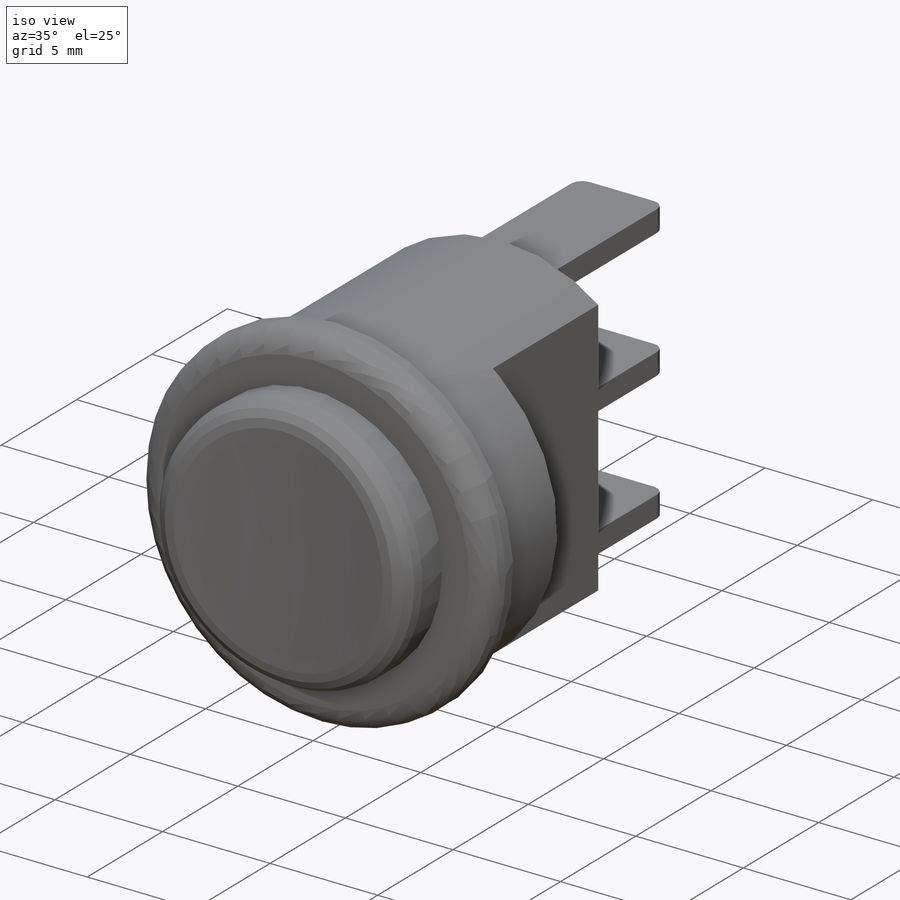
[diagram: iso view]
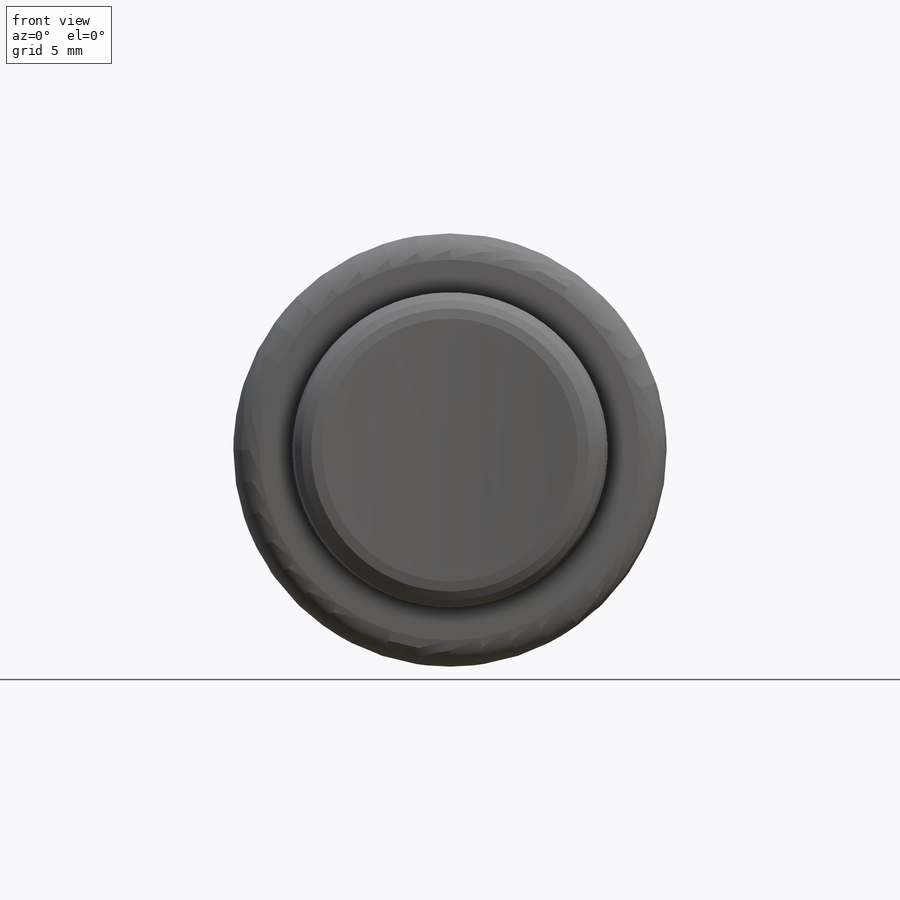
[diagram: front view]
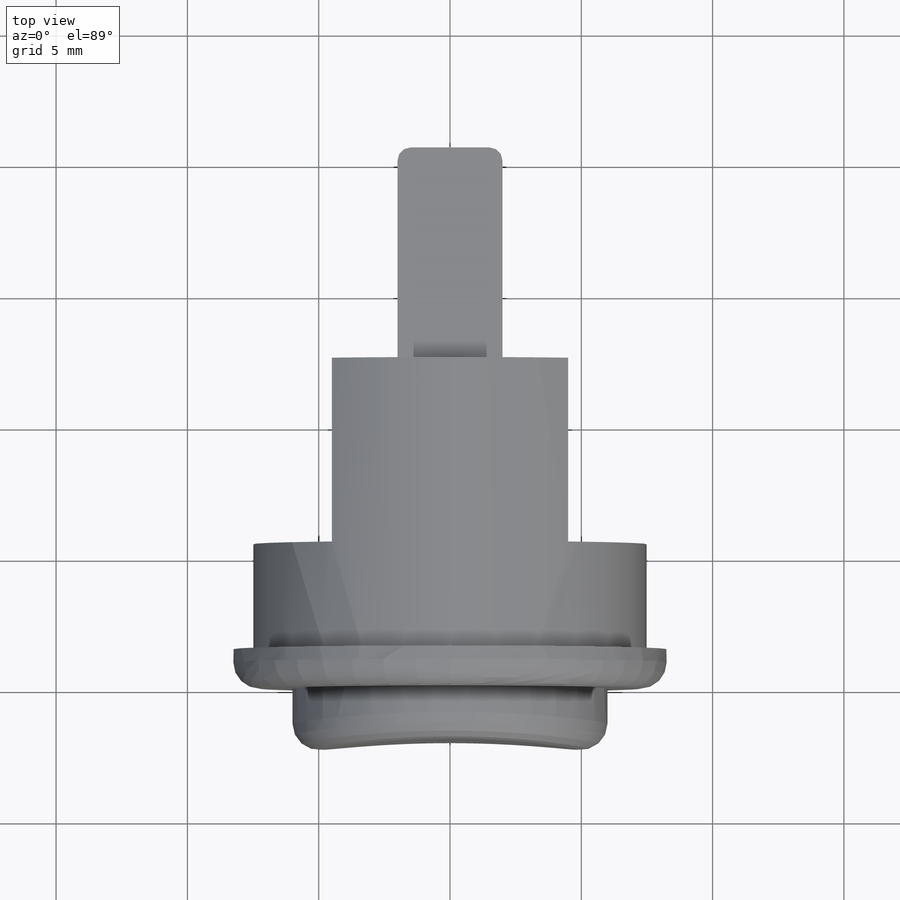
[diagram: top view]
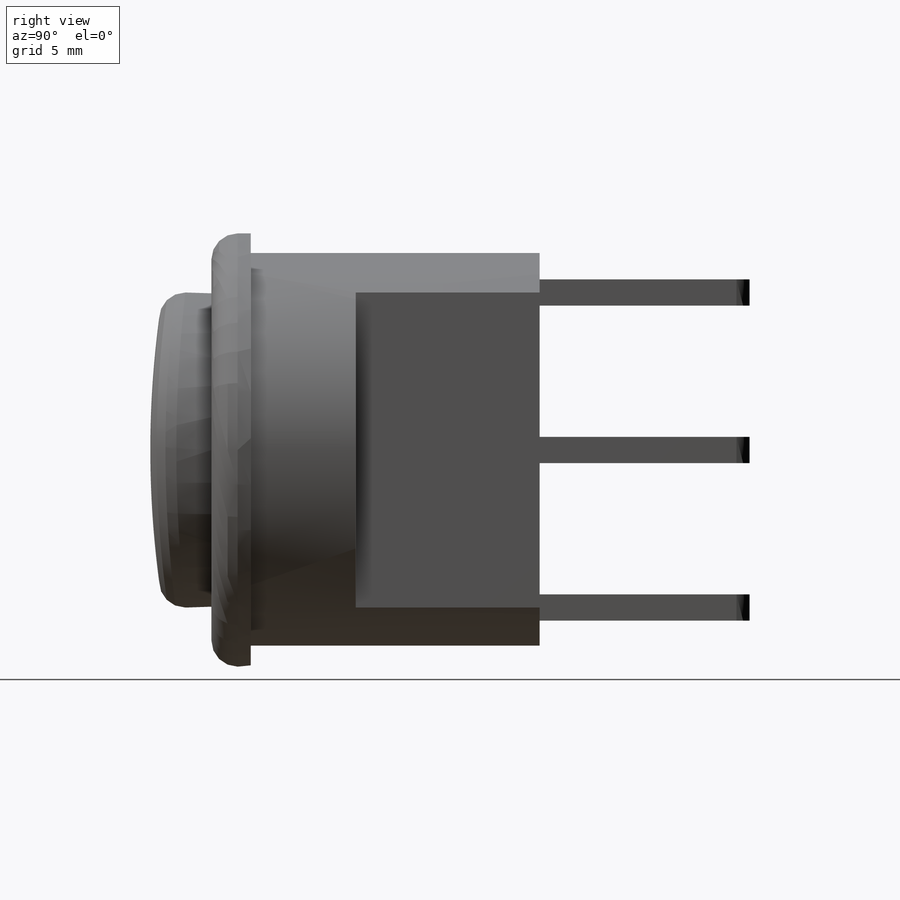
[diagram: right view]
SOLIDWORKS PART (.sldprt)
format: sldprt  version: not decoded by parser v0  size: 375,296 bytes
history: native  units: mm
features: sketch x5, fillet x5, plane x3, cut_extrude x2, extrude x2, material x1, revolve x1 (+8 scaffold rows collapsed)
feature tree (27):
  scaffold x8  (default folders/planes/origin — collapsed)
  material  "Материал <не указан>"
  plane  "Спереди"
  plane  "Сверху"
  plane  "Справа"
  sketch  "Эскиз1"  dims[D1=8.25mm D2=1.5mm D3=7.5mm D4=12.5mm]
  revolve  "Повернуть1"  Angle=360deg
  sketch  "Эскиз2"  dims[D1=9.0mm D2=0.0mm]
  cut_extrude  "Вырез-Вытянуть1"  Depth=7mm
  sketch  "Эскиз3"  dims[D1=12.0mm]
  extrude  "Бобышка-Вытянуть1"  Depth=2.5mm
  sketch  "Эскиз4"
  cut_extrude  "Вырез-Вытянуть2"  Depth=15mm
  fillet  "Скругление1"  Radius=1mm
  fillet  "Скругление2"  Radius=1mm
  sketch  "Эскиз5"  dims[D1=1.0mm D2=4.0mm D3=1.0mm D4=4.0mm D5=1.0mm D6=4.0mm D7=6.0mm D8=6.0mm]
  extrude  "Бобышка-Вытянуть2"  Depth=8mm
  fillet  "Скругление3"  Radius=0.5mm
  fillet  "Скругление4"  Radius=0.5mm
  fillet  "Скругление5"  Radius=0.5mm
decode coverage: 14 of 15 modeling features carry decoded parameters
note: suppression state not decoded; provenance and decode notes live in map.json
